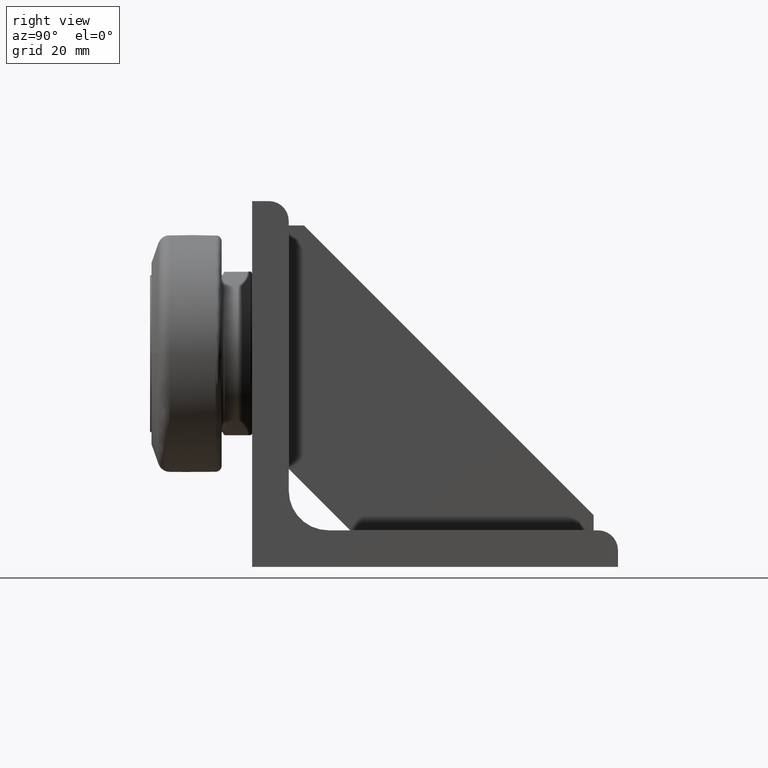
[diagram: clean part render]
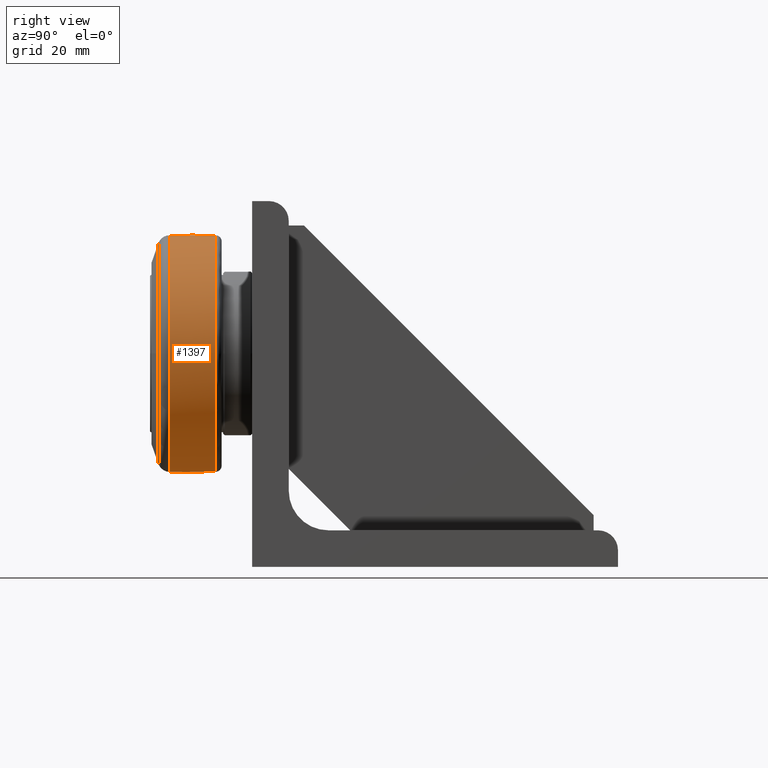
[diagram: same view with one face highlighted and labeled with its STEP entity id]
A machine part, right view. The second image highlights one B-rep face of the part: STEP entity #1397.
In plain terms, the highlighted face is a freeform B-spline surface patch.
Its self-contained STEP definition (entity closure, byte-faithful):
#15=(
BOUNDED_SURFACE()
B_SPLINE_SURFACE(2,2,((#2224,#2225,#2226,#2227,#2228,#2229,#2230,#2231,
#2232),(#2233,#2234,#2235,#2236,#2237,#2238,#2239,#2240,#2241),(#2242,#2243,
#2244,#2245,#2246,#2247,#2248,#2249,#2250)),.UNSPECIFIED.,.F.,.T.,.F.)
B_SPLINE_SURFACE_WITH_KNOTS((3,3),(3,2,2,2,3),(-0.0136107354186159,0.00788212537360009),
(-3.14159265358979,-1.5707963267949,0.,1.5707963267949,3.14159265358979),
 .UNSPECIFIED.)
GEOMETRIC_REPRESENTATION_ITEM()
RATIONAL_B_SPLINE_SURFACE(((1.,0.707106781186548,1.,0.707106781186548,1.,
0.707106781186548,1.,0.707106781186548,1.),(0.999942257672575,0.707065951195264,
0.999942257672575,0.707065951195264,0.999942257672575,0.707065951195264,
0.999942257672575,0.707065951195264,0.999942257672575),(1.,0.707106781186548,
1.,0.707106781186548,1.,0.707106781186548,1.,0.707106781186548,1.)))
REPRESENTATION_ITEM('')
SURFACE()
);
#80=CIRCLE('',#1525,38.8282553474377);
#81=CIRCLE('',#1526,38.8282553474377);
#83=CIRCLE('',#1528,700.);
#84=CIRCLE('',#1529,38.7851627594232);
#85=CIRCLE('',#1530,38.7851627594232);
#174=FACE_OUTER_BOUND('',#263,.T.);
#263=EDGE_LOOP('',(#1084,#1085,#1086,#1087,#1088,#1089));
#643=VERTEX_POINT('',#2218);
#644=VERTEX_POINT('',#2220);
#645=VERTEX_POINT('',#2251);
#646=VERTEX_POINT('',#2253);
#806=EDGE_CURVE('',#643,#644,#80,.T.);
#807=EDGE_CURVE('',#644,#643,#81,.T.);
#809=EDGE_CURVE('',#643,#645,#83,.T.);
#810=EDGE_CURVE('',#646,#645,#84,.T.);
#811=EDGE_CURVE('',#645,#646,#85,.T.);
#1084=ORIENTED_EDGE('',*,*,#807,.F.);
#1085=ORIENTED_EDGE('',*,*,#806,.F.);
#1086=ORIENTED_EDGE('',*,*,#809,.T.);
#1087=ORIENTED_EDGE('',*,*,#810,.F.);
#1088=ORIENTED_EDGE('',*,*,#811,.F.);
#1089=ORIENTED_EDGE('',*,*,#809,.F.);
#1397=ADVANCED_FACE('',(#174),#15,.F.);
#1525=AXIS2_PLACEMENT_3D('',#2221,#1804,#1805);
#1526=AXIS2_PLACEMENT_3D('',#2222,#1806,#1807);
#1528=AXIS2_PLACEMENT_3D('',#2252,#1810,#1811);
#1529=AXIS2_PLACEMENT_3D('',#2254,#1812,#1813);
#1530=AXIS2_PLACEMENT_3D('',#2255,#1814,#1815);
#1804=DIRECTION('center_axis',(-2.44929359829471E-16,-1.,-1.82724206136224E-16));
#1805=DIRECTION('ref_axis',(1.,-2.36837372140107E-16,-3.05184841518461E-16));
#1806=DIRECTION('center_axis',(-2.44929359829471E-16,-1.,-1.82724206136224E-16));
#1807=DIRECTION('ref_axis',(1.,-2.36837372140107E-16,-3.05184841518461E-16));
#1810=DIRECTION('center_axis',(1.,-2.44929359829471E-16,-5.59951021239388E-32));
#1811=DIRECTION('ref_axis',(0.,2.28617353848166E-16,-1.));
#1812=DIRECTION('center_axis',(2.44929359829471E-16,1.,1.82724206136224E-16));
#1813=DIRECTION('ref_axis',(1.,-2.36964446901576E-16,-3.05184841518461E-16));
#1814=DIRECTION('center_axis',(2.44929359829471E-16,1.,1.82724206136224E-16));
#1815=DIRECTION('ref_axis',(1.,-2.36964446901576E-16,-3.05184841518461E-16));
#2218=CARTESIAN_POINT('',(70.,-27.0174306300424,31.1717446525623));
#2220=CARTESIAN_POINT('',(31.1717446525623,-27.0174306300424,70.));
#2221=CARTESIAN_POINT('Origin',(70.,-27.0174306300424,70.));
#2222=CARTESIAN_POINT('Origin',(70.,-27.0174306300424,70.));
#2224=CARTESIAN_POINT('Ctrl Pts',(70.,-11.9727793696275,31.2148372405768));
#2225=CARTESIAN_POINT('Ctrl Pts',(108.785162759423,-11.9727793696275,31.2148372405768));
#2226=CARTESIAN_POINT('Ctrl Pts',(108.785162759423,-11.9727793696275,70.));
#2227=CARTESIAN_POINT('Ctrl Pts',(108.785162759423,-11.9727793696276,108.785162759423));
#2228=CARTESIAN_POINT('Ctrl Pts',(70.,-11.9727793696275,108.785162759423));
#2229=CARTESIAN_POINT('Ctrl Pts',(31.2148372405768,-11.9727793696275,108.785162759423));
#2230=CARTESIAN_POINT('Ctrl Pts',(31.2148372405768,-11.9727793696275,70.));
#2231=CARTESIAN_POINT('Ctrl Pts',(31.2148372405768,-11.9727793696275,31.2148372405768));
#2232=CARTESIAN_POINT('Ctrl Pts',(70.,-11.9727793696275,31.2148372405768));
#2233=CARTESIAN_POINT('Ctrl Pts',(70.,-19.4948734451723,31.1124496857387));
#2234=CARTESIAN_POINT('Ctrl Pts',(108.887550314261,-19.4948734451723,31.1124496857388));
#2235=CARTESIAN_POINT('Ctrl Pts',(108.887550314261,-19.4948734451723,70.));
#2236=CARTESIAN_POINT('Ctrl Pts',(108.887550314261,-19.4948734451723,108.887550314261));
#2237=CARTESIAN_POINT('Ctrl Pts',(70.,-19.4948734451723,108.887550314261));
#2238=CARTESIAN_POINT('Ctrl Pts',(31.1124496857388,-19.4948734451723,108.887550314261));
#2239=CARTESIAN_POINT('Ctrl Pts',(31.1124496857387,-19.4948734451723,70.));
#2240=CARTESIAN_POINT('Ctrl Pts',(31.1124496857388,-19.4948734451723,31.1124496857388));
#2241=CARTESIAN_POINT('Ctrl Pts',(70.,-19.4948734451723,31.1124496857387));
#2242=CARTESIAN_POINT('Ctrl Pts',(70.,-27.0174306300425,31.1717446525623));
#2243=CARTESIAN_POINT('Ctrl Pts',(108.828255347438,-27.0174306300425,31.1717446525623));
#2244=CARTESIAN_POINT('Ctrl Pts',(108.828255347438,-27.0174306300425,70.));
#2245=CARTESIAN_POINT('Ctrl Pts',(108.828255347438,-27.0174306300425,108.828255347438));
#2246=CARTESIAN_POINT('Ctrl Pts',(70.,-27.0174306300425,108.828255347438));
#2247=CARTESIAN_POINT('Ctrl Pts',(31.1717446525623,-27.0174306300425,108.828255347438));
#2248=CARTESIAN_POINT('Ctrl Pts',(31.1717446525623,-27.0174306300425,70.));
#2249=CARTESIAN_POINT('Ctrl Pts',(31.1717446525623,-27.0174306300425,31.1717446525623));
#2250=CARTESIAN_POINT('Ctrl Pts',(70.,-27.0174306300425,31.1717446525623));
#2251=CARTESIAN_POINT('',(70.,-11.9727793696275,31.2148372405768));
#2252=CARTESIAN_POINT('Origin',(70.,-21.5000000000001,731.15));
#2253=CARTESIAN_POINT('',(31.2148372405768,-11.9727793696275,70.));
#2254=CARTESIAN_POINT('Origin',(70.,-11.9727793696275,70.));
#2255=CARTESIAN_POINT('Origin',(70.,-11.9727793696275,70.));